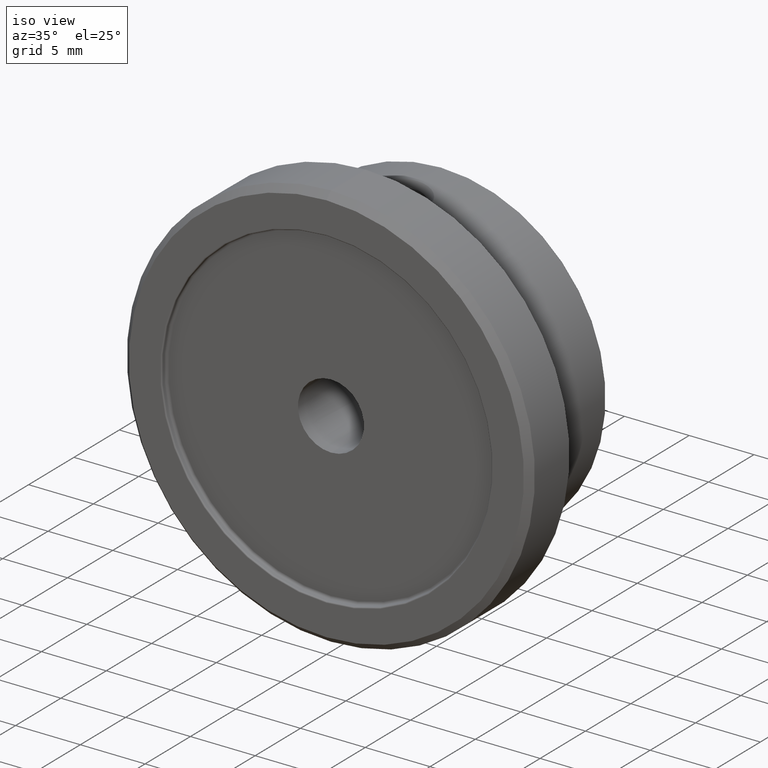
[diagram: clean part render]
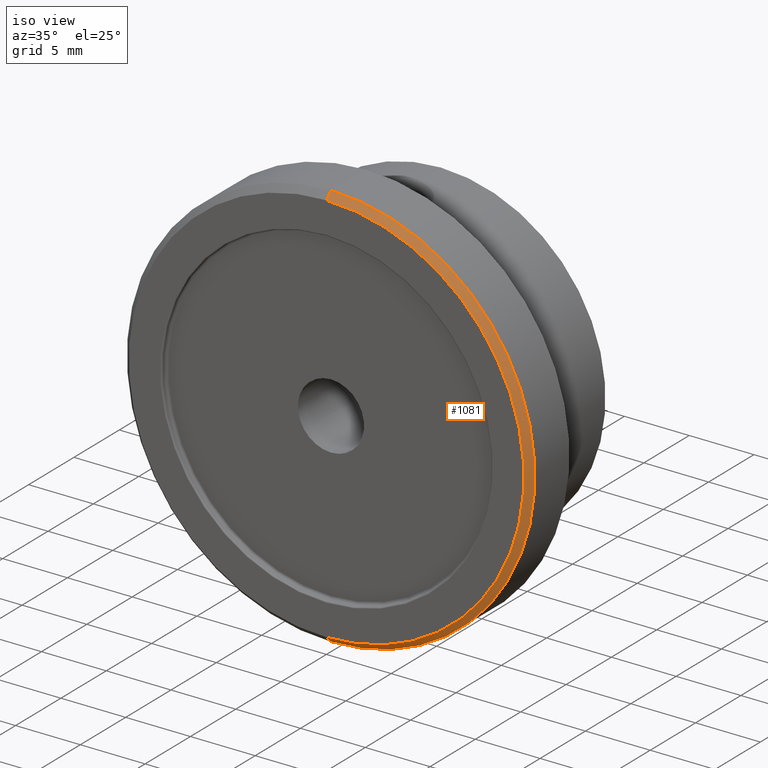
[diagram: same view with one face highlighted and labeled with its STEP entity id]
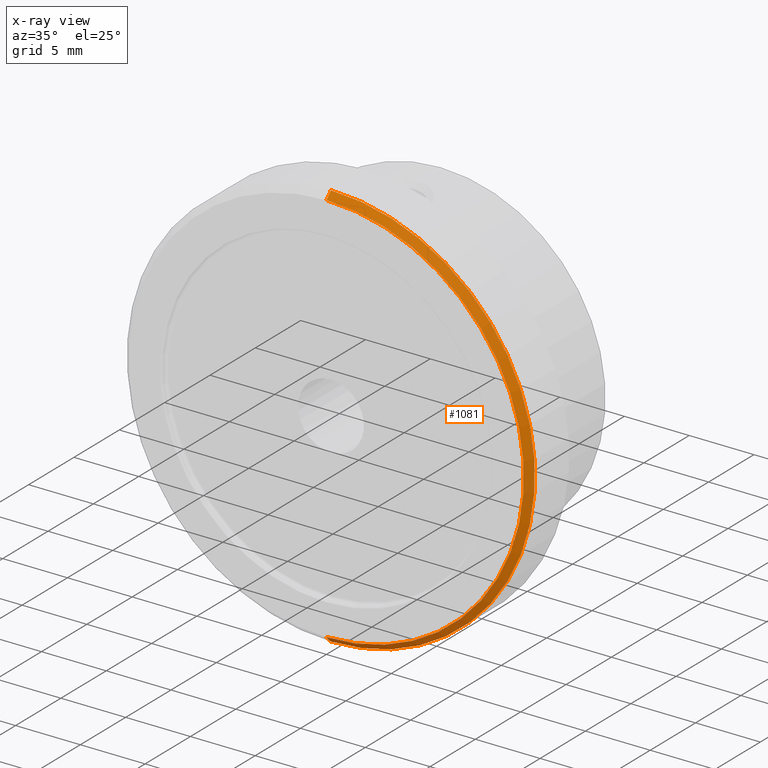
[diagram: x-ray of the same camera — body ghosted, the highlighted face saturated]
A machine part, iso view. The second image highlights one B-rep face of the part: STEP entity #1081.
The next image is the same camera in x-ray: the body ghosted, the highlighted face saturated — about 0% of this face is hidden behind the body in this view.
In plain terms, the highlighted conical surface has half-angle 45 deg.
Its self-contained STEP definition (entity closure, byte-faithful):
#19 = VERTEX_POINT ( 'NONE', #723 ) ;
#38 = DIRECTION ( 'NONE',  ( 0.000000000000000000, 0.000000000000000000, 1.000000000000000000 ) ) ;
#113 = ORIENTED_EDGE ( 'NONE', *, *, #1153, .F. ) ;
#151 = CARTESIAN_POINT ( 'NONE',  ( 0.000000000000000000, -1.734723475976807094E-15, 0.000000000000000000 ) ) ;
#204 = ORIENTED_EDGE ( 'NONE', *, *, #1108, .T. ) ;
#235 = CIRCLE ( 'NONE', #261, 15.75000000000000000 ) ;
#247 = EDGE_LOOP ( 'NONE', ( #926, #204, #542, #113 ) ) ;
#258 = DIRECTION ( 'NONE',  ( -0.000000000000000000, -1.000000000000000000, -0.000000000000000000 ) ) ;
#259 = LINE ( 'NONE', #391, #1125 ) ;
#261 = AXIS2_PLACEMENT_3D ( 'NONE', #793, #1047, #582 ) ;
#286 = EDGE_CURVE ( 'NONE', #613, #981, #1167, .T. ) ;
#391 = CARTESIAN_POINT ( 'NONE',  ( 0.000000000000000000, 0.5000000000000004441, 15.75000000000000000 ) ) ;
#438 = VERTEX_POINT ( 'NONE', #691 ) ;
#445 = CARTESIAN_POINT ( 'NONE',  ( 0.000000000000000000, -1.734723475976807094E-15, 15.25000000000000000 ) ) ;
#501 = DIRECTION ( 'NONE',  ( 0.000000000000000000, 0.7071067811865487940, 0.7071067811865463515 ) ) ;
#542 = ORIENTED_EDGE ( 'NONE', *, *, #1278, .T. ) ;
#546 = AXIS2_PLACEMENT_3D ( 'NONE', #1295, #1407, #38 ) ;
#582 = DIRECTION ( 'NONE',  ( 0.000000000000000000, 0.000000000000000000, -1.000000000000000000 ) ) ;
#593 = DIRECTION ( 'NONE',  ( 0.000000000000000000, 0.000000000000000000, -1.000000000000000000 ) ) ;
#613 = VERTEX_POINT ( 'NONE', #1202 ) ;
#659 = AXIS2_PLACEMENT_3D ( 'NONE', #151, #258, #593 ) ;
#664 = VECTOR ( 'NONE', #1075, 1000.000000000000000 ) ;
#691 = CARTESIAN_POINT ( 'NONE',  ( 1.928818708657081344E-15, 0.5000000000000004441, -15.75000000000000000 ) ) ;
#723 = CARTESIAN_POINT ( 'NONE',  ( 0.000000000000000000, 0.5000000000000004441, 15.75000000000000000 ) ) ;
#735 = CONICAL_SURFACE ( 'NONE', #546, 15.75000000000000000, 0.7853981633974466137 ) ;
#793 = CARTESIAN_POINT ( 'NONE',  ( 0.000000000000000000, 0.5000000000000004441, 0.000000000000000000 ) ) ;
#829 = CARTESIAN_POINT ( 'NONE',  ( 1.928818708657081344E-15, 0.5000000000000004441, -15.75000000000000000 ) ) ;
#838 = FACE_OUTER_BOUND ( 'NONE', #247, .T. ) ;
#926 = ORIENTED_EDGE ( 'NONE', *, *, #286, .F. ) ;
#981 = VERTEX_POINT ( 'NONE', #445 ) ;
#1047 = DIRECTION ( 'NONE',  ( -0.000000000000000000, -1.000000000000000000, -0.000000000000000000 ) ) ;
#1075 = DIRECTION ( 'NONE',  ( 8.659560562354918067E-17, 0.7071067811865487940, -0.7071067811865463515 ) ) ;
#1081 = ADVANCED_FACE ( 'NONE', ( #838 ), #735, .T. ) ;
#1108 = EDGE_CURVE ( 'NONE', #613, #438, #1175, .T. ) ;
#1125 = VECTOR ( 'NONE', #501, 1000.000000000000000 ) ;
#1153 = EDGE_CURVE ( 'NONE', #981, #19, #259, .T. ) ;
#1167 = CIRCLE ( 'NONE', #659, 15.25000000000000000 ) ;
#1175 = LINE ( 'NONE', #829, #664 ) ;
#1202 = CARTESIAN_POINT ( 'NONE',  ( 1.898202538678397557E-15, -1.734723475976807094E-15, -15.25000000000000000 ) ) ;
#1278 = EDGE_CURVE ( 'NONE', #438, #19, #235, .T. ) ;
#1295 = CARTESIAN_POINT ( 'NONE',  ( 0.000000000000000000, 0.5000000000000004441, 0.000000000000000000 ) ) ;
#1407 = DIRECTION ( 'NONE',  ( 0.000000000000000000, 1.000000000000000000, 0.000000000000000000 ) ) ;